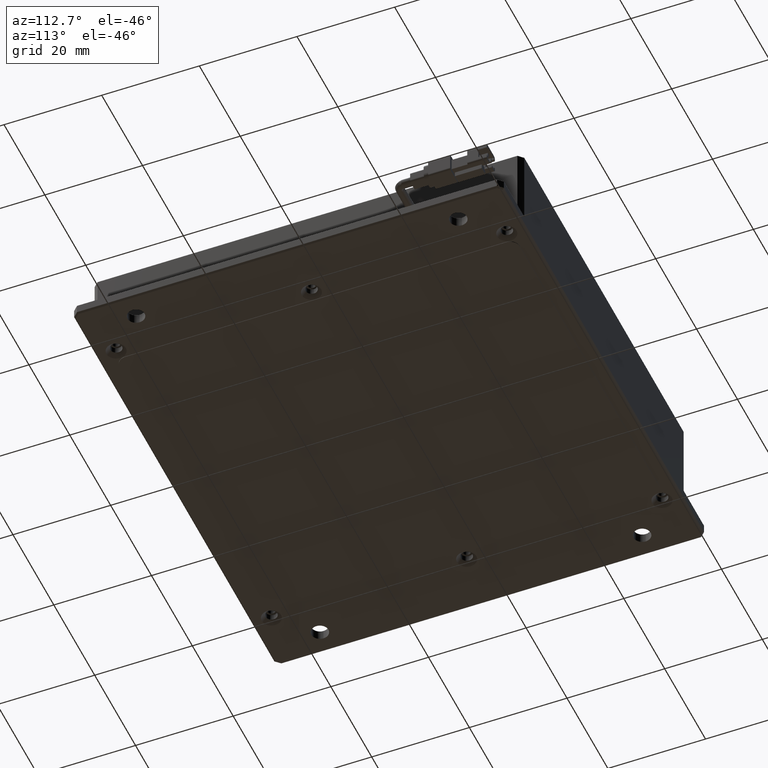
[diagram: clean part render]
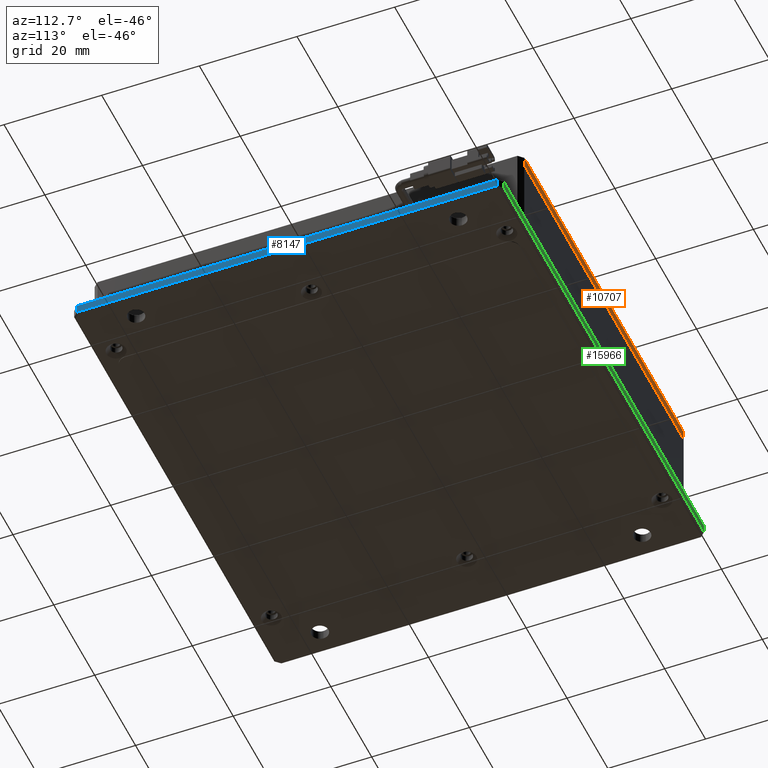
[diagram: same view with three faces highlighted in distinct colors, each labeled with its STEP entity id]
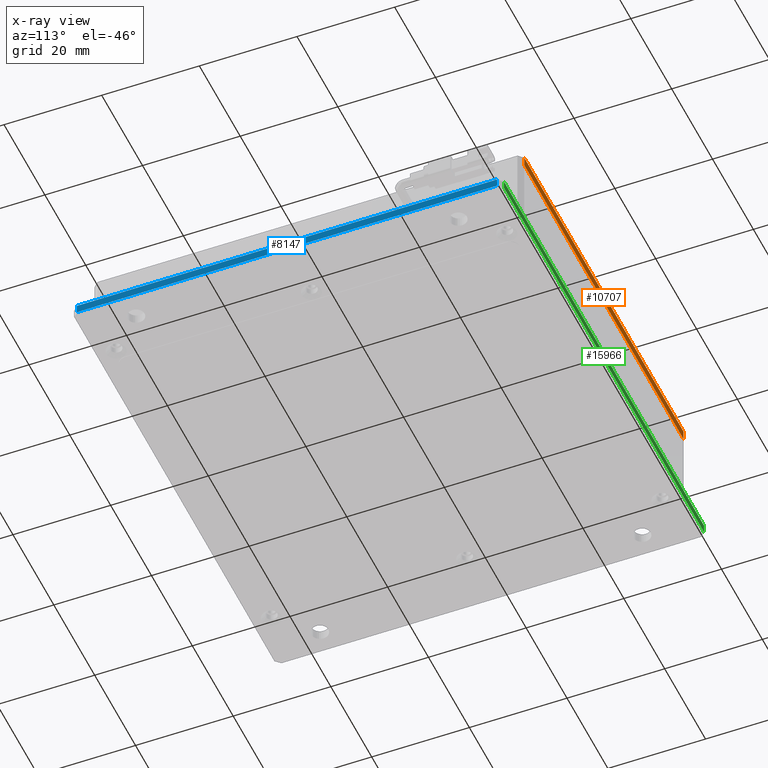
[diagram: x-ray of the same camera — body ghosted, the three highlighted faces saturated]
A machine part, auxiliary view with three faces highlighted in distinct colors.
The next image is the same camera in x-ray (body ghosted, the three faces saturated) — at least one of them is partly hidden behind the body in this view.
Their STEP definitions:

[orange] entity #10707 — the highlighted planar face has unit normal (0, -1, 0).
#1704 = CARTESIAN_POINT ( 'NONE',  ( 56.05231004200065600, 39.79992363497531500, 15.99999999999545600 ) ) ;
#1828 = CARTESIAN_POINT ( 'NONE',  ( 57.05231004200065600, 39.79992363497531500, 13.99999999999545600 ) ) ;
#1899 = FACE_OUTER_BOUND ( 'NONE', #10444, .T. ) ;
#2391 = CARTESIAN_POINT ( 'NONE',  ( 56.05231004200065600, 39.79992363497531500, 13.99999999999545600 ) ) ;
#2557 = CARTESIAN_POINT ( 'NONE',  ( 56.05231004200065600, 39.79992363497531500, 13.99999999999545600 ) ) ;
#3465 = LINE ( 'NONE', #2557, #17673 ) ;
#3994 = VECTOR ( 'NONE', #12648, 1000.000000000000000 ) ;
#4609 = ORIENTED_EDGE ( 'NONE', *, *, #15464, .F. ) ;
#4930 = AXIS2_PLACEMENT_3D ( 'NONE', #5518, #15153, #6901 ) ;
#5518 = CARTESIAN_POINT ( 'NONE',  ( 57.05231004200065600, 39.79992363497531500, 13.99999999999545600 ) ) ;
#5615 = VECTOR ( 'NONE', #5907, 1000.000000000000000 ) ;
#5802 = CARTESIAN_POINT ( 'NONE',  ( 57.05231004200065600, 39.79992363497531500, 15.99999999999545600 ) ) ;
#5907 = DIRECTION ( 'NONE',  ( 1.000000000000000000, 3.885780586188043000E-016, -0.0000000000000000000 ) ) ;
#6901 = DIRECTION ( 'NONE',  ( -1.000000000000000000, -3.885780586188043000E-016, 0.0000000000000000000 ) ) ;
#6923 = VERTEX_POINT ( 'NONE', #9076 ) ;
#7882 = VERTEX_POINT ( 'NONE', #2391 ) ;
#8724 = ORIENTED_EDGE ( 'NONE', *, *, #8787, .F. ) ;
#8787 = EDGE_CURVE ( 'NONE', #6923, #7882, #12967, .T. ) ;
#9076 = CARTESIAN_POINT ( 'NONE',  ( -21.94768995799934400, 39.79992363497537200, 13.99999999999545600 ) ) ;
#9362 = ORIENTED_EDGE ( 'NONE', *, *, #17138, .F. ) ;
#10444 = EDGE_LOOP ( 'NONE', ( #14729, #8724, #4609, #9362 ) ) ;
#10707 = ADVANCED_FACE ( 'NONE', ( #1899 ), #13731, .F. ) ;
#10792 = DIRECTION ( 'NONE',  ( -0.0000000000000000000, -0.0000000000000000000, 1.000000000000000000 ) ) ;
#11776 = CARTESIAN_POINT ( 'NONE',  ( -21.94768995799935900, 39.79992363497537200, 15.99999999999545600 ) ) ;
#12008 = VERTEX_POINT ( 'NONE', #1704 ) ;
#12505 = VECTOR ( 'NONE', #17670, 1000.000000000000000 ) ;
#12648 = DIRECTION ( 'NONE',  ( -1.000000000000000000, 4.440892098500626200E-016, -0.0000000000000000000 ) ) ;
#12967 = LINE ( 'NONE', #1828, #5615 ) ;
#13712 = EDGE_CURVE ( 'NONE', #7882, #12008, #3465, .T. ) ;
#13731 = PLANE ( 'NONE',  #4930 ) ;
#14729 = ORIENTED_EDGE ( 'NONE', *, *, #13712, .F. ) ;
#14986 = LINE ( 'NONE', #5802, #3994 ) ;
#15153 = DIRECTION ( 'NONE',  ( 3.885780586188043000E-016, -1.000000000000000000, 0.0000000000000000000 ) ) ;
#15464 = EDGE_CURVE ( 'NONE', #16388, #6923, #16601, .T. ) ;
#16236 = CARTESIAN_POINT ( 'NONE',  ( -21.94768995799934400, 39.79992363497528600, 13.99999999999545600 ) ) ;
#16388 = VERTEX_POINT ( 'NONE', #11776 ) ;
#16601 = LINE ( 'NONE', #16236, #12505 ) ;
#17138 = EDGE_CURVE ( 'NONE', #12008, #16388, #14986, .T. ) ;
#17670 = DIRECTION ( 'NONE',  ( 0.0000000000000000000, 0.0000000000000000000, -1.000000000000000000 ) ) ;
#17673 = VECTOR ( 'NONE', #10792, 1000.000000000000000 ) ;

[blue] entity #8147 — the highlighted planar face has unit normal (-1, 0, 0).
#446 = VECTOR ( 'NONE', #9666, 1000.000000000000000 ) ;
#526 = EDGE_CURVE ( 'NONE', #16283, #9620, #16721, .T. ) ;
#1143 = CARTESIAN_POINT ( 'NONE',  ( 67.05231004200074100, -48.20007636502478500, -1.700000000004553000 ) ) ;
#1893 = ORIENTED_EDGE ( 'NONE', *, *, #526, .T. ) ;
#2442 = CARTESIAN_POINT ( 'NONE',  ( 67.05231004200074100, -47.20007636502479900, -4.547577592273199800E-012 ) ) ;
#2849 = CARTESIAN_POINT ( 'NONE',  ( 67.05231004200074100, 38.79992363497520800, -4.547577592273199800E-012 ) ) ;
#3513 = VERTEX_POINT ( 'NONE', #15667 ) ;
#3964 = EDGE_CURVE ( 'NONE', #16283, #3513, #11409, .T. ) ;
#4773 = CARTESIAN_POINT ( 'NONE',  ( 67.05231004200074100, -47.20007636502479900, -1.700000000004553400 ) ) ;
#5546 = EDGE_CURVE ( 'NONE', #5559, #9620, #7602, .T. ) ;
#5559 = VERTEX_POINT ( 'NONE', #4773 ) ;
#5924 = CARTESIAN_POINT ( 'NONE',  ( 67.05231004200074100, -48.20007636502478500, -4.547577592273199800E-012 ) ) ;
#6434 = ORIENTED_EDGE ( 'NONE', *, *, #3964, .F. ) ;
#7283 = DIRECTION ( 'NONE',  ( 0.0000000000000000000, 0.0000000000000000000, 1.000000000000000000 ) ) ;
#7457 = DIRECTION ( 'NONE',  ( -0.0000000000000000000, -1.000000000000000000, -0.0000000000000000000 ) ) ;
#7602 = LINE ( 'NONE', #14344, #14496 ) ;
#8147 = ADVANCED_FACE ( 'NONE', ( #12492 ), #8608, .F. ) ;
#8540 = LINE ( 'NONE', #1143, #16729 ) ;
#8608 = PLANE ( 'NONE',  #17245 ) ;
#8692 = CARTESIAN_POINT ( 'NONE',  ( 67.05231004200074100, 38.79992363497520800, -4.547577592273199800E-012 ) ) ;
#9620 = VERTEX_POINT ( 'NONE', #2442 ) ;
#9666 = DIRECTION ( 'NONE',  ( -0.0000000000000000000, -0.0000000000000000000, -1.000000000000000000 ) ) ;
#11302 = ORIENTED_EDGE ( 'NONE', *, *, #16886, .F. ) ;
#11409 = LINE ( 'NONE', #2849, #446 ) ;
#12492 = FACE_OUTER_BOUND ( 'NONE', #16661, .T. ) ;
#12749 = ORIENTED_EDGE ( 'NONE', *, *, #5546, .F. ) ;
#13080 = VECTOR ( 'NONE', #7457, 1000.000000000000000 ) ;
#14344 = CARTESIAN_POINT ( 'NONE',  ( 67.05231004200074100, -47.20007636502479900, -4.547577592273199800E-012 ) ) ;
#14496 = VECTOR ( 'NONE', #15710, 1000.000000000000000 ) ;
#14780 = DIRECTION ( 'NONE',  ( -0.0000000000000000000, -1.000000000000000000, 0.0000000000000000000 ) ) ;
#15530 = DIRECTION ( 'NONE',  ( -1.000000000000000000, 0.0000000000000000000, 0.0000000000000000000 ) ) ;
#15667 = CARTESIAN_POINT ( 'NONE',  ( 67.05231004200074100, 38.79992363497520800, -1.700000000004544800 ) ) ;
#15710 = DIRECTION ( 'NONE',  ( 0.0000000000000000000, 0.0000000000000000000, 1.000000000000000000 ) ) ;
#16283 = VERTEX_POINT ( 'NONE', #8692 ) ;
#16661 = EDGE_LOOP ( 'NONE', ( #11302, #6434, #1893, #12749 ) ) ;
#16721 = LINE ( 'NONE', #17450, #13080 ) ;
#16729 = VECTOR ( 'NONE', #14780, 1000.000000000000000 ) ;
#16886 = EDGE_CURVE ( 'NONE', #3513, #5559, #8540, .T. ) ;
#17245 = AXIS2_PLACEMENT_3D ( 'NONE', #5924, #15530, #7283 ) ;
#17450 = CARTESIAN_POINT ( 'NONE',  ( 67.05231004200074100, 39.79992363497521500, -4.547577592273199800E-012 ) ) ;

[green] entity #15966 — the highlighted planar face has unit normal (0, -1, 0).
#173 = ORIENTED_EDGE ( 'NONE', *, *, #15334, .F. ) ;
#715 = VERTEX_POINT ( 'NONE', #1660 ) ;
#952 = DIRECTION ( 'NONE',  ( 1.000000000000000000, 0.0000000000000000000, 0.0000000000000000000 ) ) ;
#1005 = ORIENTED_EDGE ( 'NONE', *, *, #8118, .T. ) ;
#1650 = VERTEX_POINT ( 'NONE', #13686 ) ;
#1660 = CARTESIAN_POINT ( 'NONE',  ( 66.05231004200076900, 39.79992363497521500, -1.700000000004552100 ) ) ;
#2209 = VECTOR ( 'NONE', #952, 1000.000000000000000 ) ;
#3938 = DIRECTION ( 'NONE',  ( 0.0000000000000000000, -1.000000000000000000, 0.0000000000000000000 ) ) ;
#4102 = LINE ( 'NONE', #7112, #10586 ) ;
#4653 = LINE ( 'NONE', #14985, #8306 ) ;
#4774 = ORIENTED_EDGE ( 'NONE', *, *, #11114, .F. ) ;
#5268 = CARTESIAN_POINT ( 'NONE',  ( -31.94768995799925900, 39.79992363497521500, -4.547577592273199800E-012 ) ) ;
#5409 = LINE ( 'NONE', #9156, #2209 ) ;
#6543 = CARTESIAN_POINT ( 'NONE',  ( -31.94768995799925900, 39.79992363497521500, -1.700000000004553000 ) ) ;
#7112 = CARTESIAN_POINT ( 'NONE',  ( 66.05231004200076900, 39.79992363497522900, -4.547577592273199800E-012 ) ) ;
#7317 = EDGE_LOOP ( 'NONE', ( #173, #4774, #17079, #1005 ) ) ;
#7844 = VERTEX_POINT ( 'NONE', #14659 ) ;
#8118 = EDGE_CURVE ( 'NONE', #1650, #715, #4102, .T. ) ;
#8135 = DIRECTION ( 'NONE',  ( 1.000000000000000000, -0.0000000000000000000, 0.0000000000000000000 ) ) ;
#8306 = VECTOR ( 'NONE', #8135, 1000.000000000000000 ) ;
#9156 = CARTESIAN_POINT ( 'NONE',  ( -32.94768995799925900, 39.79992363497521500, -1.700000000004553000 ) ) ;
#10586 = VECTOR ( 'NONE', #13929, 1000.000000000000000 ) ;
#11114 = EDGE_CURVE ( 'NONE', #7844, #16869, #13289, .T. ) ;
#12183 = CARTESIAN_POINT ( 'NONE',  ( -32.94768995799925900, 39.79992363497521500, -4.547577592273199800E-012 ) ) ;
#12681 = FACE_OUTER_BOUND ( 'NONE', #7317, .T. ) ;
#13289 = LINE ( 'NONE', #5268, #16483 ) ;
#13550 = DIRECTION ( 'NONE',  ( 0.0000000000000000000, -0.0000000000000000000, -1.000000000000000000 ) ) ;
#13602 = DIRECTION ( 'NONE',  ( 0.0000000000000000000, -0.0000000000000000000, -1.000000000000000000 ) ) ;
#13686 = CARTESIAN_POINT ( 'NONE',  ( 66.05231004200076900, 39.79992363497521500, -4.547577592273199800E-012 ) ) ;
#13929 = DIRECTION ( 'NONE',  ( -0.0000000000000000000, -0.0000000000000000000, -1.000000000000000000 ) ) ;
#14001 = AXIS2_PLACEMENT_3D ( 'NONE', #12183, #3938, #13602 ) ;
#14659 = CARTESIAN_POINT ( 'NONE',  ( -31.94768995799925900, 39.79992363497521500, -4.547577592273199800E-012 ) ) ;
#14910 = PLANE ( 'NONE',  #14001 ) ;
#14985 = CARTESIAN_POINT ( 'NONE',  ( -32.94768995799925900, 39.79992363497521500, -4.547577592273199800E-012 ) ) ;
#15334 = EDGE_CURVE ( 'NONE', #16869, #715, #5409, .T. ) ;
#15966 = ADVANCED_FACE ( 'NONE', ( #12681 ), #14910, .F. ) ;
#16483 = VECTOR ( 'NONE', #13550, 1000.000000000000000 ) ;
#16869 = VERTEX_POINT ( 'NONE', #6543 ) ;
#17079 = ORIENTED_EDGE ( 'NONE', *, *, #17490, .T. ) ;
#17490 = EDGE_CURVE ( 'NONE', #7844, #1650, #4653, .T. ) ;